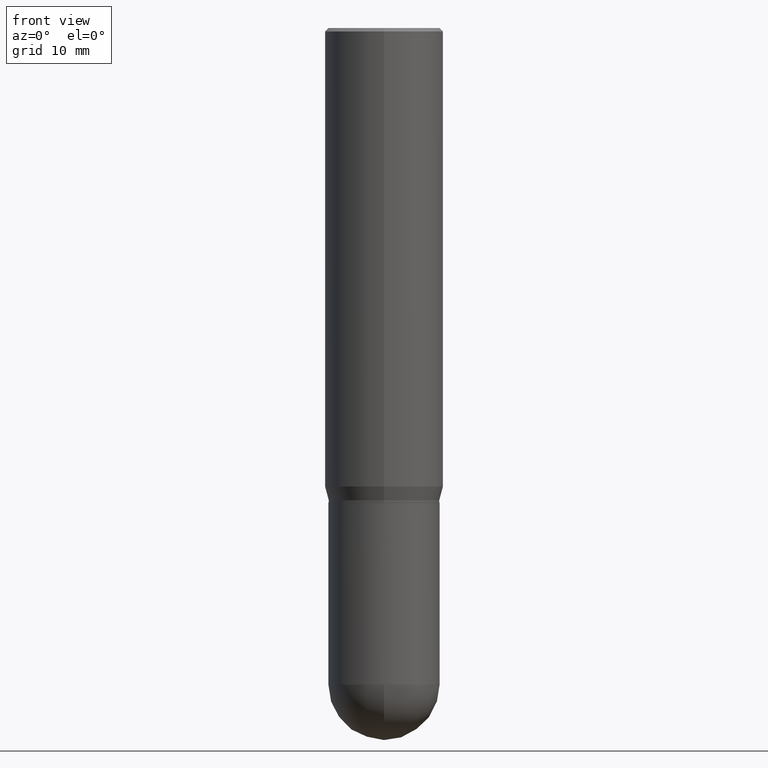
[diagram: clean part render]
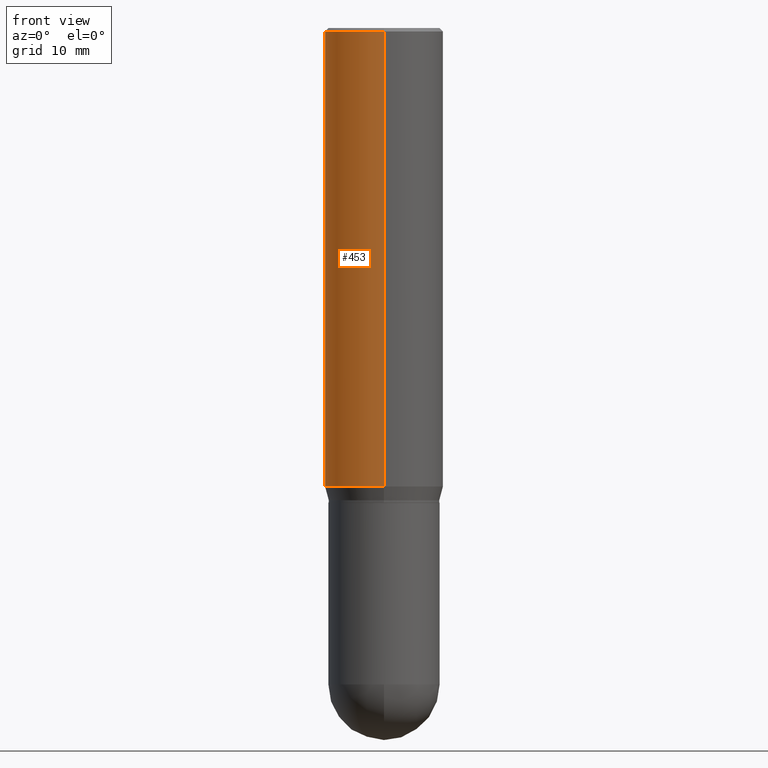
[diagram: same view with one face highlighted and labeled with its STEP entity id]
A machine part, front view. The second image highlights one B-rep face of the part: STEP entity #453.
In plain terms, the highlighted cylindrical surface (partial cylindrical patch) has radius 6.35 mm, axis along (-0, 0, 1).
Its self-contained STEP definition (entity closure, byte-faithful):
#11 = ORIENTED_EDGE ( 'NONE', *, *, #509, .F. ) ;
#24 = DIRECTION ( 'NONE',  ( -2.445743750396045645E-29, 3.491087603084271538E-15, 1.000000000000000000 ) ) ;
#31 = LINE ( 'NONE', #378, #428 ) ;
#40 = EDGE_CURVE ( 'NONE', #436, #51, #99, .T. ) ;
#51 = VERTEX_POINT ( 'NONE', #386 ) ;
#77 = AXIS2_PLACEMENT_3D ( 'NONE', #339, #415, #107 ) ;
#84 = DIRECTION ( 'NONE',  ( -2.445743750396045645E-29, 3.491087603084271144E-15, 1.000000000000000000 ) ) ;
#99 = LINE ( 'NONE', #311, #233 ) ;
#107 = DIRECTION ( 'NONE',  ( -6.982962677686265922E-15, -1.000000000000000000, 3.491643216902136408E-15 ) ) ;
#120 = DIRECTION ( 'NONE',  ( -6.982962677686265922E-15, -1.000000000000000000, 3.278217592397115862E-15 ) ) ;
#123 = CYLINDRICAL_SURFACE ( 'NONE', #454, 0.2500000000000000000 ) ;
#124 = ORIENTED_EDGE ( 'NONE', *, *, #40, .T. ) ;
#133 = EDGE_LOOP ( 'NONE', ( #11, #362, #124, #390 ) ) ;
#156 = CARTESIAN_POINT ( 'NONE',  ( 1.776356839400297402E-15, 0.2499999999999932832, -1.931780007401926680 ) ) ;
#159 = FACE_OUTER_BOUND ( 'NONE', #133, .T. ) ;
#174 = VERTEX_POINT ( 'NONE', #156 ) ;
#181 = DIRECTION ( 'NONE',  ( -2.445743750396045645E-29, 3.491087603084271538E-15, 1.000000000000000000 ) ) ;
#186 = EDGE_CURVE ( 'NONE', #174, #436, #426, .T. ) ;
#189 = DIRECTION ( 'NONE',  ( -2.445743750396045645E-29, 3.491087603084271144E-15, 1.000000000000000000 ) ) ;
#208 = CARTESIAN_POINT ( 'NONE',  ( 1.776356839400298191E-15, 0.2499999999999999167, -0.01500000000000103681 ) ) ;
#233 = VECTOR ( 'NONE', #181, 39.37007874015748143 ) ;
#267 = AXIS2_PLACEMENT_3D ( 'NONE', #357, #189, #120 ) ;
#306 = CIRCLE ( 'NONE', #77, 0.2500000000000000000 ) ;
#308 = VERTEX_POINT ( 'NONE', #208 ) ;
#311 = CARTESIAN_POINT ( 'NONE',  ( -1.745740669421566480E-15, -0.2500000000000000000, 8.727719007710677859E-16 ) ) ;
#339 = CARTESIAN_POINT ( 'NONE',  ( 3.668615625594108632E-31, -5.236631404626464376E-17, -0.01500000000000016424 ) ) ;
#357 = CARTESIAN_POINT ( 'NONE',  ( 4.724638880243287230E-29, -6.744013235726904476E-15, -1.931780007401925792 ) ) ;
#362 = ORIENTED_EDGE ( 'NONE', *, *, #186, .T. ) ;
#378 = CARTESIAN_POINT ( 'NONE',  ( 1.776356839400250267E-15, 0.2500000000000000000, -8.727719007710677859E-16 ) ) ;
#386 = CARTESIAN_POINT ( 'NONE',  ( -1.745740669421565889E-15, -0.2500000000000000555, -0.01499999999999929168 ) ) ;
#387 = DIRECTION ( 'NONE',  ( -6.982962677686265922E-15, -1.000000000000000000, 3.491087603084271144E-15 ) ) ;
#390 = ORIENTED_EDGE ( 'NONE', *, *, #459, .F. ) ;
#415 = DIRECTION ( 'NONE',  ( -2.445743750396045645E-29, 3.491087603084271144E-15, 1.000000000000000000 ) ) ;
#426 = CIRCLE ( 'NONE', #267, 0.2500000000000000000 ) ;
#428 = VECTOR ( 'NONE', #24, 39.37007874015748143 ) ;
#436 = VERTEX_POINT ( 'NONE', #455 ) ;
#441 = CARTESIAN_POINT ( 'NONE',  ( 0.000000000000000000, 0.000000000000000000, 0.000000000000000000 ) ) ;
#453 = ADVANCED_FACE ( 'NONE', ( #159 ), #123, .T. ) ;
#454 = AXIS2_PLACEMENT_3D ( 'NONE', #441, #84, #387 ) ;
#455 = CARTESIAN_POINT ( 'NONE',  ( -1.745740669421519149E-15, -0.2500000000000067168, -1.931780007401924903 ) ) ;
#459 = EDGE_CURVE ( 'NONE', #308, #51, #306, .T. ) ;
#509 = EDGE_CURVE ( 'NONE', #174, #308, #31, .T. ) ;